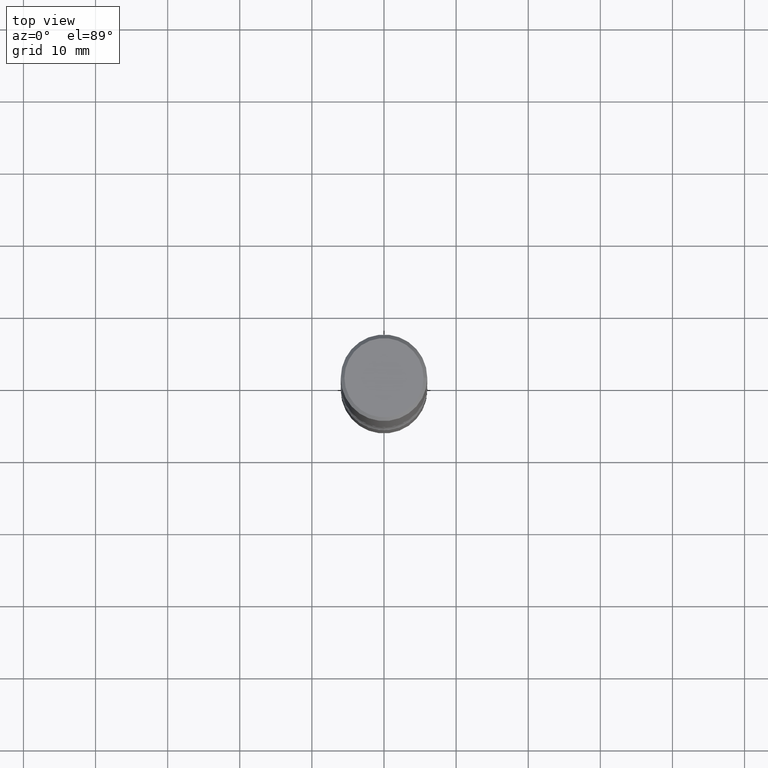
[diagram: clean part render]
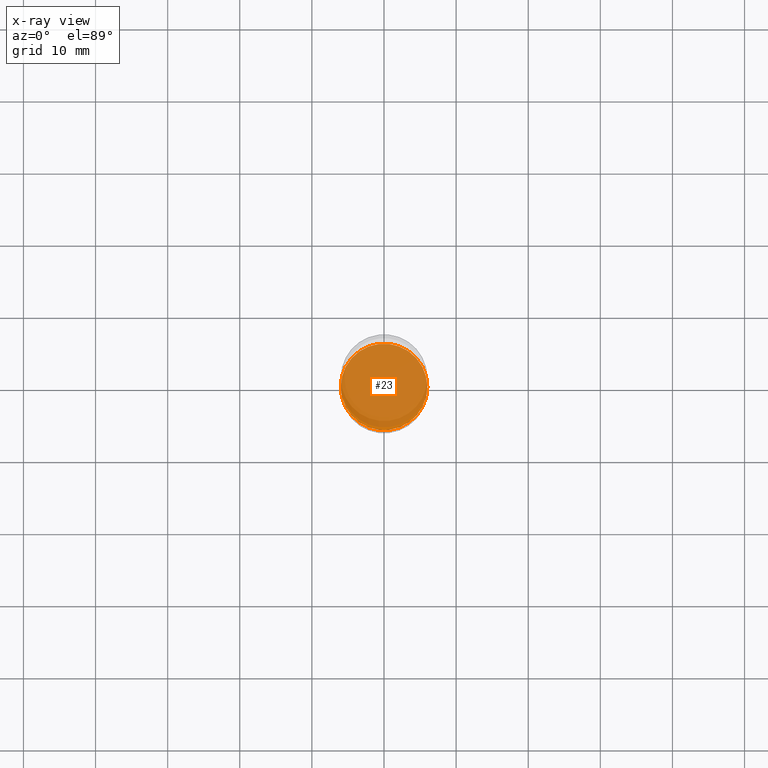
[diagram: x-ray — body ghosted, one internal face saturated and labeled with its STEP entity id]
A machine part, top view, then the same camera in x-ray: the body is ghosted and one INTERNAL B-rep face — a face not visible from any outside direction — is saturated and labeled: STEP entity #23.
In plain terms, the highlighted planar face has unit normal (0, -0, -1).
Its self-contained STEP definition (entity closure, byte-faithful):
#19 = CARTESIAN_POINT ( 'NONE',  ( 7.124628819939777829E-29, -1.017208173258562247E-14, -2.913400000000000212 ) ) ;
#23 = ADVANCED_FACE ( 'NONE', ( #274 ), #444, .F. ) ;
#35 = AXIS2_PLACEMENT_3D ( 'NONE', #184, #46, #358 ) ;
#38 = ORIENTED_EDGE ( 'NONE', *, *, #279, .T. ) ;
#46 = DIRECTION ( 'NONE',  ( 2.438088387897960049E-29, -3.491481338843145188E-15, -1.000000000000000000 ) ) ;
#107 = DIRECTION ( 'NONE',  ( -2.445468806185136597E-29, 3.491481338843145583E-15, 1.000000000000000000 ) ) ;
#114 = EDGE_LOOP ( 'NONE', ( #38, #551 ) ) ;
#143 = DIRECTION ( 'NONE',  ( -2.445468806185136597E-29, 3.491481338843145583E-15, 1.000000000000000000 ) ) ;
#158 = CARTESIAN_POINT ( 'NONE',  ( -0.2362000000000001321, -1.022834771985753829E-14, -2.913400000000000212 ) ) ;
#172 = AXIS2_PLACEMENT_3D ( 'NONE', #500, #107, #459 ) ;
#184 = CARTESIAN_POINT ( 'NONE',  ( 7.124628819939777829E-29, -1.017208173258562247E-14, -2.913400000000000212 ) ) ;
#274 = FACE_OUTER_BOUND ( 'NONE', #114, .T. ) ;
#276 = CIRCLE ( 'NONE', #382, 0.2362000000000001321 ) ;
#279 = EDGE_CURVE ( 'NONE', #494, #555, #276, .T. ) ;
#312 = DIRECTION ( 'NONE',  ( 1.000000000000000000, -6.982962677686269077E-15, 0.000000000000000000 ) ) ;
#344 = CIRCLE ( 'NONE', #172, 0.2362000000000001321 ) ;
#358 = DIRECTION ( 'NONE',  ( -1.000000000000000000, 6.982962677686265922E-15, -4.876176775795935793E-29 ) ) ;
#382 = AXIS2_PLACEMENT_3D ( 'NONE', #19, #143, #312 ) ;
#444 = PLANE ( 'NONE',  #35 ) ;
#459 = DIRECTION ( 'NONE',  ( 1.000000000000000000, -6.982962677686269077E-15, 0.000000000000000000 ) ) ;
#494 = VERTEX_POINT ( 'NONE', #537 ) ;
#500 = CARTESIAN_POINT ( 'NONE',  ( 7.124628819939777829E-29, -1.017208173258562247E-14, -2.913400000000000212 ) ) ;
#526 = EDGE_CURVE ( 'NONE', #555, #494, #344, .T. ) ;
#537 = CARTESIAN_POINT ( 'NONE',  ( 0.2362000000000001321, -1.182145751705511899E-14, -2.913400000000000212 ) ) ;
#551 = ORIENTED_EDGE ( 'NONE', *, *, #526, .T. ) ;
#555 = VERTEX_POINT ( 'NONE', #158 ) ;